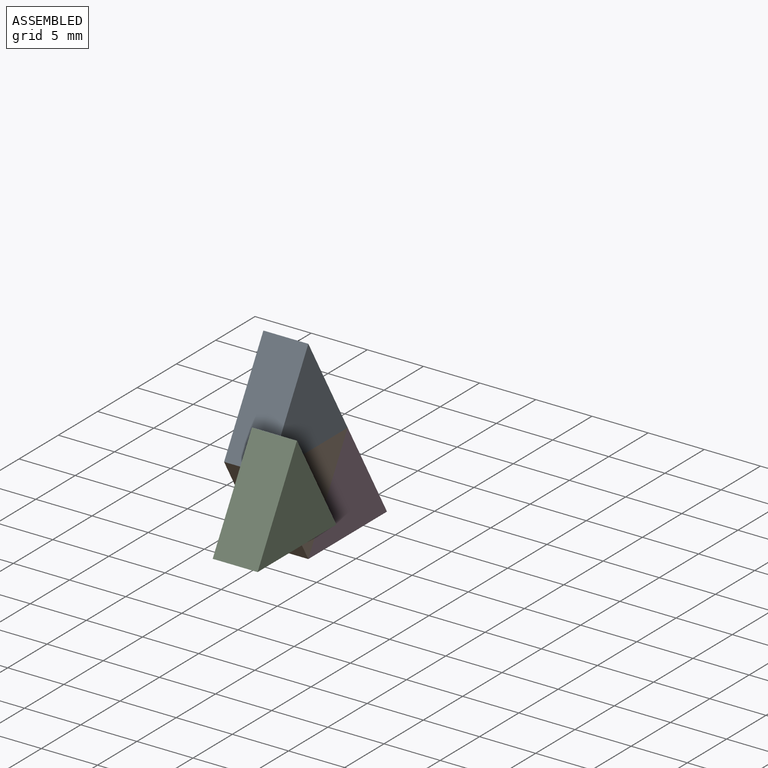
[diagram: assembled view]
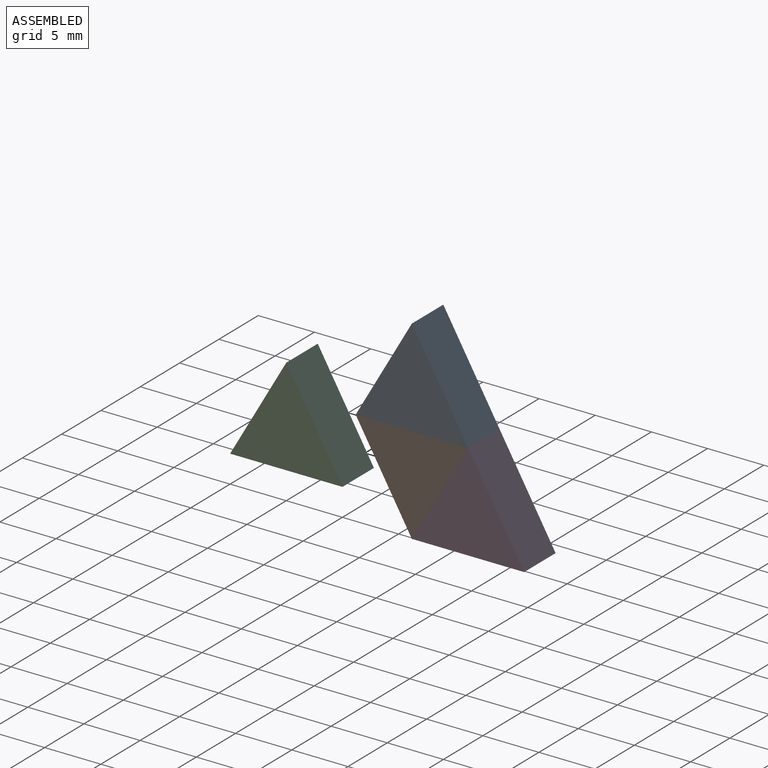
[diagram: assembled view, second angle]
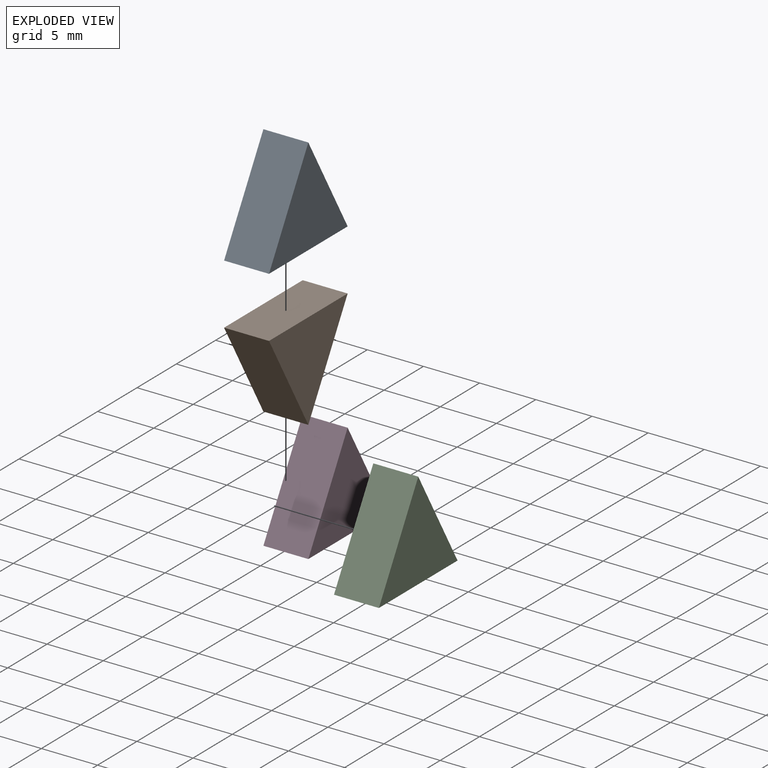
[diagram: exploded view]
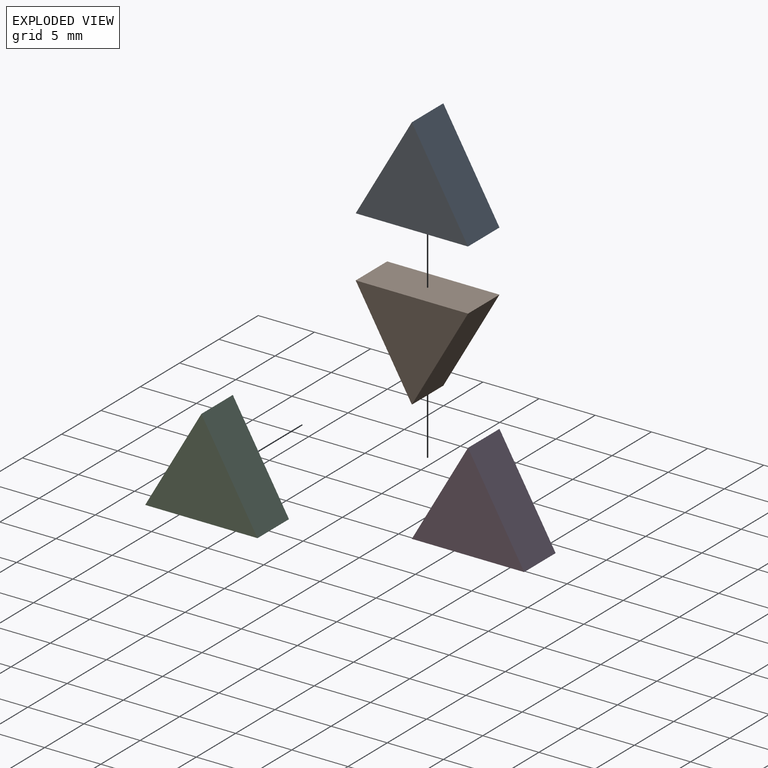
[diagram: exploded view, second angle]
ASSEMBLY  parts=4 mates=2
PART A: 5 faces, bbox 4x10x8.7 mm
  f0: plane 8.66x5mm, normal (0,0.87,0.5), area 40mm2, adj f1,f2,f3,f4
  f1: plane 8.66x5mm, normal (0,-0.87,0.5), area 40mm2, adj f0,f2,f3,f4
  f2: plane 10x4mm, normal (0,0,-1), area 40mm2, adj f0,f1,f3,f4
  f3: plane 10x8.66mm, normal (1,0,0), area 43.3mm2, adj f0,f1,f2
  f4: plane 10x8.66mm, normal (-1,0,0), area 43.3mm2, adj f0,f1,f2
PART B: same geometry as A
PART C: same geometry as A
PART D: same geometry as A
PLACE A rot(axis=(-1,0,0),120deg) t=(-2,-81.14,-121.83)mm
PLACE B rot(axis=(-1,0,0),60deg) t=(-2,49.3,-129.91)mm
PLACE C t=(2.57,108.56,-15.86)mm
PLACE D t=(-2,121.53,-20.99)mm
MATE revolute A.f0 <-> B.f1  axis (0,0,-1) through (0,-13.91,-12.9)mm
MATE revolute B.f0 <-> D.f1  axis (0,0.87,-0.5) through (0,-11.41,-17.23)mm
